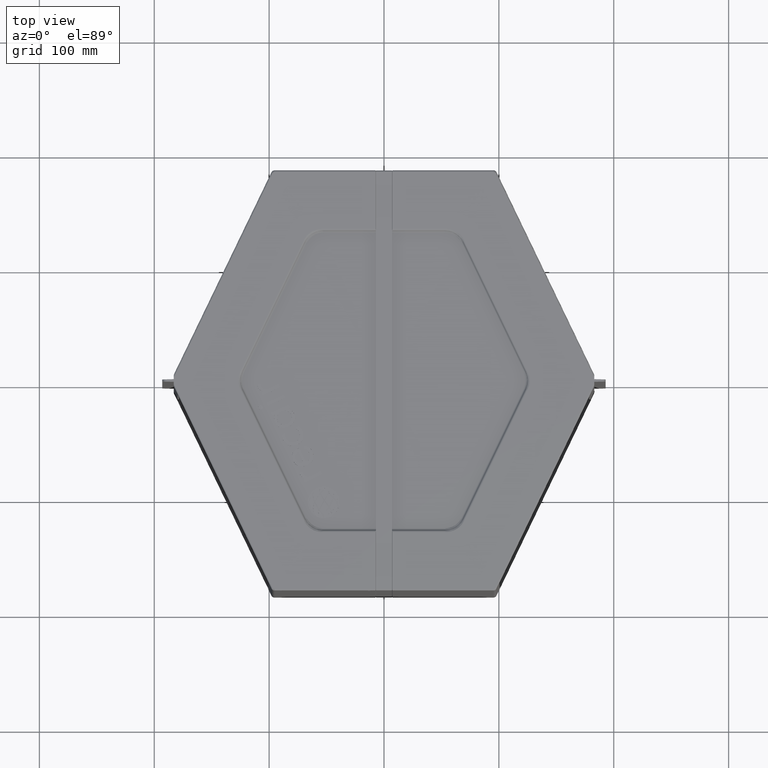
[diagram: clean part render]
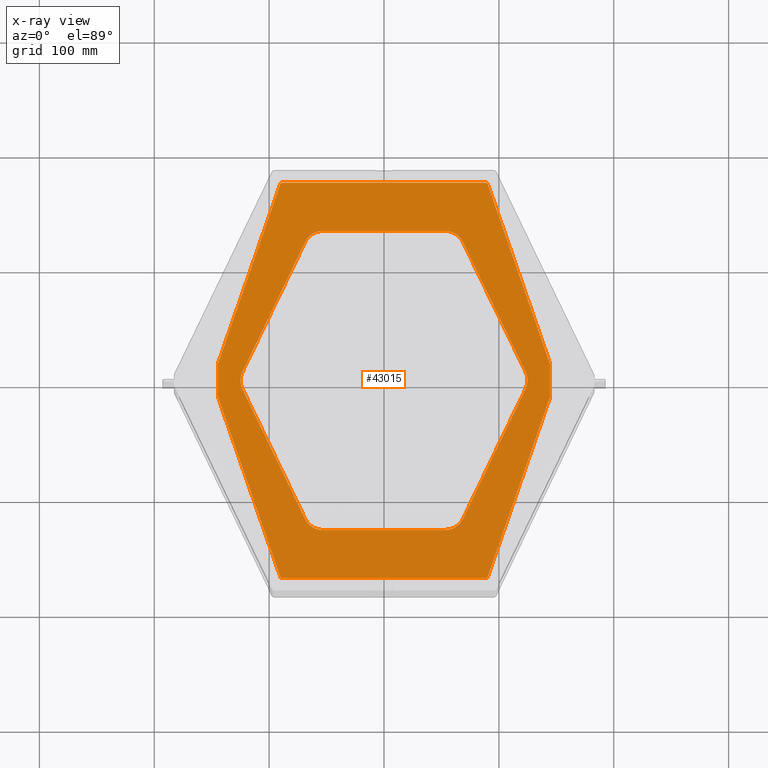
[diagram: x-ray — body ghosted, one internal face saturated and labeled with its STEP entity id]
A machine part, top view, then the same camera in x-ray: the body is ghosted and one INTERNAL B-rep face — a face not visible from any outside direction — is saturated and labeled: STEP entity #43015.
In plain terms, the highlighted planar face has unit normal (0, 0, 1).
Its self-contained STEP definition (entity closure, byte-faithful):
#1691=B_SPLINE_CURVE_WITH_KNOTS('',3,(#77413,#77414,#77415,#77416,#77417,
#77418,#77419,#77420),.UNSPECIFIED.,.F.,.F.,(4,2,2,4),(-1.98146014269304,
-1.3412873107452,-0.710856490114893,0.),.UNSPECIFIED.);
#1692=B_SPLINE_CURVE_WITH_KNOTS('',3,(#77449,#77450,#77451,#77452,#77453,
#77454,#77455,#77456),.UNSPECIFIED.,.F.,.F.,(4,2,2,4),(-1.98146014269311,
-1.34128731074525,-0.710856490114917,0.),.UNSPECIFIED.);
#1705=B_SPLINE_CURVE_WITH_KNOTS('',3,(#78128,#78129,#78130,#78131,#78132,
#78133,#78134,#78135),.UNSPECIFIED.,.F.,.F.,(4,2,2,4),(-1.58387703034784,
-1.14024298625562,-0.701200302790074,0.),.UNSPECIFIED.);
#1706=B_SPLINE_CURVE_WITH_KNOTS('',3,(#78158,#78159,#78160,#78161,#78162,
#78163,#78164,#78165),.UNSPECIFIED.,.F.,.F.,(4,2,2,4),(-1.58387703034787,
-1.1402429862556,-0.701200302790053,0.),.UNSPECIFIED.);
#1707=B_SPLINE_CURVE_WITH_KNOTS('',3,(#78192,#78193,#78194,#78195,#78196,
#78197,#78198,#78199),.UNSPECIFIED.,.F.,.F.,(4,2,2,4),(-1.98146014269321,
-1.34128731074529,-0.71085649011494,0.),.UNSPECIFIED.);
#1708=B_SPLINE_CURVE_WITH_KNOTS('',3,(#78226,#78227,#78228,#78229,#78230,
#78231,#78232,#78233),.UNSPECIFIED.,.F.,.F.,(4,2,2,4),(-1.98146014269319,
-1.34128731074528,-0.710856490114933,0.),.UNSPECIFIED.);
#1766=FACE_BOUND('',#6807,.T.);
#2489=PLANE('',#45621);
#4496=FACE_OUTER_BOUND('',#6806,.T.);
#6806=EDGE_LOOP('',(#34864,#34865,#34866,#34867,#34868,#34869,#34870,#34871,
#34872,#34873,#34874,#34875,#34876,#34877,#34878,#34879));
#6807=EDGE_LOOP('',(#34880,#34881,#34882,#34883,#34884,#34885,#34886,#34887,
#34888,#34889,#34890,#34891));
#10218=LINE('',#77425,#14386);
#10220=LINE('',#77460,#14388);
#10251=LINE('',#78024,#14419);
#10256=LINE('',#78038,#14424);
#10259=LINE('',#78046,#14427);
#10264=LINE('',#78057,#14432);
#10271=LINE('',#78078,#14439);
#10272=LINE('',#78169,#14440);
#10273=LINE('',#78203,#14441);
#10274=LINE('',#78236,#14442);
#10276=LINE('',#78243,#14444);
#10279=LINE('',#78251,#14447);
#10282=LINE('',#78259,#14450);
#10285=LINE('',#78266,#14453);
#14386=VECTOR('',#52615,10.);
#14388=VECTOR('',#52623,10.);
#14419=VECTOR('',#52760,10.);
#14424=VECTOR('',#52775,10.);
#14427=VECTOR('',#52784,10.);
#14432=VECTOR('',#52799,10.);
#14439=VECTOR('',#52818,10.);
#14440=VECTOR('',#52831,10.);
#14441=VECTOR('',#52838,10.);
#14442=VECTOR('',#52845,10.);
#14444=VECTOR('',#52853,10.);
#14447=VECTOR('',#52862,10.);
#14450=VECTOR('',#52871,10.);
#14453=VECTOR('',#52880,10.);
#16485=CIRCLE('',#45576,1.68181818181791);
#16486=CIRCLE('',#45579,1.68181818181813);
#16487=CIRCLE('',#45581,1.68181818181759);
#16488=CIRCLE('',#45584,1.68181818181822);
#16500=CIRCLE('',#45610,1.68181818181824);
#16501=CIRCLE('',#45613,1.68181818181778);
#16502=CIRCLE('',#45616,1.68181818181825);
#16503=CIRCLE('',#45619,1.68181818181752);
#19436=VERTEX_POINT('',#77411);
#19437=VERTEX_POINT('',#77412);
#19438=VERTEX_POINT('',#77424);
#19439=VERTEX_POINT('',#77448);
#19440=VERTEX_POINT('',#77459);
#19489=VERTEX_POINT('',#78017);
#19490=VERTEX_POINT('',#78018);
#19491=VERTEX_POINT('',#78023);
#19492=VERTEX_POINT('',#78027);
#19493=VERTEX_POINT('',#78031);
#19494=VERTEX_POINT('',#78032);
#19495=VERTEX_POINT('',#78037);
#19496=VERTEX_POINT('',#78041);
#19497=VERTEX_POINT('',#78045);
#19498=VERTEX_POINT('',#78056);
#19507=VERTEX_POINT('',#78127);
#19508=VERTEX_POINT('',#78157);
#19509=VERTEX_POINT('',#78168);
#19510=VERTEX_POINT('',#78191);
#19511=VERTEX_POINT('',#78202);
#19512=VERTEX_POINT('',#78225);
#19513=VERTEX_POINT('',#78238);
#19514=VERTEX_POINT('',#78242);
#19515=VERTEX_POINT('',#78246);
#19516=VERTEX_POINT('',#78250);
#19517=VERTEX_POINT('',#78254);
#19518=VERTEX_POINT('',#78258);
#19519=VERTEX_POINT('',#78262);
#24724=EDGE_CURVE('',#19436,#19437,#1691,.T.);
#24727=EDGE_CURVE('',#19437,#19438,#10218,.T.);
#24730=EDGE_CURVE('',#19438,#19439,#1692,.T.);
#24732=EDGE_CURVE('',#19439,#19440,#10220,.T.);
#24808=EDGE_CURVE('',#19489,#19490,#16485,.T.);
#24811=EDGE_CURVE('',#19490,#19491,#10251,.T.);
#24813=EDGE_CURVE('',#19491,#19492,#16486,.T.);
#24815=EDGE_CURVE('',#19493,#19494,#16487,.T.);
#24818=EDGE_CURVE('',#19494,#19495,#10256,.T.);
#24820=EDGE_CURVE('',#19495,#19496,#16488,.T.);
#24822=EDGE_CURVE('',#19497,#19436,#10259,.T.);
#24828=EDGE_CURVE('',#19498,#19493,#10264,.T.);
#24839=EDGE_CURVE('',#19496,#19489,#10271,.T.);
#24842=EDGE_CURVE('',#19440,#19507,#1705,.T.);
#24844=EDGE_CURVE('',#19508,#19497,#1706,.T.);
#24846=EDGE_CURVE('',#19509,#19508,#10272,.T.);
#24848=EDGE_CURVE('',#19510,#19509,#1707,.T.);
#24850=EDGE_CURVE('',#19511,#19510,#10273,.T.);
#24852=EDGE_CURVE('',#19512,#19511,#1708,.T.);
#24854=EDGE_CURVE('',#19507,#19512,#10274,.T.);
#24855=EDGE_CURVE('',#19513,#19498,#16500,.T.);
#24857=EDGE_CURVE('',#19514,#19513,#10276,.T.);
#24859=EDGE_CURVE('',#19515,#19514,#16501,.T.);
#24861=EDGE_CURVE('',#19516,#19515,#10279,.T.);
#24863=EDGE_CURVE('',#19517,#19516,#16502,.T.);
#24865=EDGE_CURVE('',#19518,#19517,#10282,.T.);
#24867=EDGE_CURVE('',#19519,#19518,#16503,.T.);
#24869=EDGE_CURVE('',#19492,#19519,#10285,.T.);
#34864=ORIENTED_EDGE('',*,*,#24828,.F.);
#34865=ORIENTED_EDGE('',*,*,#24855,.F.);
#34866=ORIENTED_EDGE('',*,*,#24857,.F.);
#34867=ORIENTED_EDGE('',*,*,#24859,.F.);
#34868=ORIENTED_EDGE('',*,*,#24861,.F.);
#34869=ORIENTED_EDGE('',*,*,#24863,.F.);
#34870=ORIENTED_EDGE('',*,*,#24865,.F.);
#34871=ORIENTED_EDGE('',*,*,#24867,.F.);
#34872=ORIENTED_EDGE('',*,*,#24869,.F.);
#34873=ORIENTED_EDGE('',*,*,#24813,.F.);
#34874=ORIENTED_EDGE('',*,*,#24811,.F.);
#34875=ORIENTED_EDGE('',*,*,#24808,.F.);
#34876=ORIENTED_EDGE('',*,*,#24839,.F.);
#34877=ORIENTED_EDGE('',*,*,#24820,.F.);
#34878=ORIENTED_EDGE('',*,*,#24818,.F.);
#34879=ORIENTED_EDGE('',*,*,#24815,.F.);
#34880=ORIENTED_EDGE('',*,*,#24822,.F.);
#34881=ORIENTED_EDGE('',*,*,#24844,.F.);
#34882=ORIENTED_EDGE('',*,*,#24846,.F.);
#34883=ORIENTED_EDGE('',*,*,#24848,.F.);
#34884=ORIENTED_EDGE('',*,*,#24850,.F.);
#34885=ORIENTED_EDGE('',*,*,#24852,.F.);
#34886=ORIENTED_EDGE('',*,*,#24854,.F.);
#34887=ORIENTED_EDGE('',*,*,#24842,.F.);
#34888=ORIENTED_EDGE('',*,*,#24732,.F.);
#34889=ORIENTED_EDGE('',*,*,#24730,.F.);
#34890=ORIENTED_EDGE('',*,*,#24727,.F.);
#34891=ORIENTED_EDGE('',*,*,#24724,.F.);
#43015=ADVANCED_FACE('',(#4496,#1766),#2489,.T.);
#45576=AXIS2_PLACEMENT_3D('',#78019,#52754,#52755);
#45579=AXIS2_PLACEMENT_3D('',#78028,#52764,#52765);
#45581=AXIS2_PLACEMENT_3D('',#78033,#52769,#52770);
#45584=AXIS2_PLACEMENT_3D('',#78042,#52779,#52780);
#45610=AXIS2_PLACEMENT_3D('',#78239,#52848,#52849);
#45613=AXIS2_PLACEMENT_3D('',#78247,#52857,#52858);
#45616=AXIS2_PLACEMENT_3D('',#78255,#52866,#52867);
#45619=AXIS2_PLACEMENT_3D('',#78263,#52875,#52876);
#45621=AXIS2_PLACEMENT_3D('',#78267,#52881,#52882);
#52615=DIRECTION('',(-1.,0.,0.));
#52623=DIRECTION('',(-0.434445257404413,-0.90069823932259,-1.10303721578407E-16));
#52754=DIRECTION('center_axis',(0.,0.,-1.));
#52755=DIRECTION('ref_axis',(-1.,1.67581241891141E-16,2.05227831479124E-32));
#52760=DIRECTION('',(0.327424670971755,0.944877285597997,0.));
#52764=DIRECTION('center_axis',(0.,0.,-1.));
#52765=DIRECTION('ref_axis',(-0.944877285597997,0.327424670971755,4.00979575267435E-17));
#52769=DIRECTION('center_axis',(0.,0.,-1.));
#52770=DIRECTION('ref_axis',(-1.67581241891141E-16,-1.,-1.22464679914735E-16));
#52775=DIRECTION('',(-0.327424670971755,0.944877285597997,0.));
#52779=DIRECTION('center_axis',(0.,0.,-1.));
#52780=DIRECTION('ref_axis',(-0.944877285597996,-0.327424670971757,-4.00979575267438E-17));
#52784=DIRECTION('',(-0.434445257404413,0.90069823932259,1.10303721578407E-16));
#52799=DIRECTION('',(-1.,3.67831560702327E-16,0.));
#52818=DIRECTION('',(-1.12876157107285E-15,1.,0.));
#52831=DIRECTION('',(0.434445257404412,0.90069823932259,1.10303721578407E-16));
#52838=DIRECTION('',(1.,2.75439061325119E-16,3.37315564811959E-32));
#52845=DIRECTION('',(0.434445257404412,-0.90069823932259,-1.10303721578407E-16));
#52848=DIRECTION('center_axis',(0.,0.,-1.));
#52849=DIRECTION('ref_axis',(0.944877285597995,-0.32742467097176,-4.00979575267441E-17));
#52853=DIRECTION('',(-0.327424670971755,-0.944877285597996,0.));
#52857=DIRECTION('center_axis',(0.,0.,-1.));
#52858=DIRECTION('ref_axis',(1.,-1.67581241891141E-16,-2.05227831479124E-32));
#52862=DIRECTION('',(-1.46392405485513E-15,-1.,0.));
#52866=DIRECTION('center_axis',(0.,0.,-1.));
#52867=DIRECTION('ref_axis',(0.944877285597996,0.327424670971757,4.00979575267438E-17));
#52871=DIRECTION('',(0.327424670971755,-0.944877285597997,0.));
#52875=DIRECTION('center_axis',(0.,0.,-1.));
#52876=DIRECTION('ref_axis',(1.67581241891141E-16,1.,1.22464679914735E-16));
#52880=DIRECTION('',(1.,-1.73935027827507E-17,0.));
#52881=DIRECTION('center_axis',(0.,0.,1.));
#52882=DIRECTION('ref_axis',(1.,0.,0.));
#77411=CARTESIAN_POINT('',(68.7904762322757,120.314480288701,346.));
#77412=CARTESIAN_POINT('',(52.9998709686779,130.22951210002,346.));
#77413=CARTESIAN_POINT('Ctrl Pts',(68.7904762322757,120.314480288701,346.));
#77414=CARTESIAN_POINT('Ctrl Pts',(67.8636409049183,122.236008797219,346.));
#77415=CARTESIAN_POINT('Ctrl Pts',(66.6263715128331,123.98069571258,346.000000000021));
#77416=CARTESIAN_POINT('Ctrl Pts',(63.5801325783517,126.915466374005,346.000000000021));
#77417=CARTESIAN_POINT('Ctrl Pts',(61.8249133910185,128.069747860098,345.999999999985));
#77418=CARTESIAN_POINT('Ctrl Pts',(57.7045476576324,129.789801274203,345.999999999985));
#77419=CARTESIAN_POINT('Ctrl Pts',(55.3693926023942,130.22951210002,346.));
#77420=CARTESIAN_POINT('Ctrl Pts',(52.9998709686779,130.22951210002,346.));
#77424=CARTESIAN_POINT('',(-52.9998709686779,130.22951210002,346.));
#77425=CARTESIAN_POINT('',(-32.2459136851235,130.22951210002,346.));
#77448=CARTESIAN_POINT('',(-68.7904762322756,120.314480288701,346.));
#77449=CARTESIAN_POINT('Ctrl Pts',(-52.9998709686779,130.22951210002,346.));
#77450=CARTESIAN_POINT('Ctrl Pts',(-55.1332475254732,130.22951210002,346.));
#77451=CARTESIAN_POINT('Ctrl Pts',(-57.242209777831,129.873076693035,346.000000000021));
#77452=CARTESIAN_POINT('Ctrl Pts',(-61.2089766033987,128.404331843618,346.000000000021));
#77453=CARTESIAN_POINT('Ctrl Pts',(-63.0111825572478,127.324881129305,345.999999999985));
#77454=CARTESIAN_POINT('Ctrl Pts',(-66.3505049905139,124.360944016119,345.999999999985));
#77455=CARTESIAN_POINT('Ctrl Pts',(-67.7610487961905,122.448704252226,346.));
#77456=CARTESIAN_POINT('Ctrl Pts',(-68.7904762322757,120.314480288701,346.));
#77459=CARTESIAN_POINT('',(-123.149536732667,7.61648382201197,346.));
#77460=CARTESIAN_POINT('',(-114.935536713592,24.645868373652,346.));
#78017=CARTESIAN_POINT('',(-144.681818181818,13.8215335158806,346.));
#78018=CARTESIAN_POINT('',(-144.589111798505,14.3722022806967,346.));
#78019=CARTESIAN_POINT('Origin',(-143.,13.8215335158806,346.));
#78023=CARTESIAN_POINT('',(-90.2959288435839,171.050668764816,346.));
#78024=CARTESIAN_POINT('',(-139.061843669433,30.3227111139831,346.));
#78027=CARTESIAN_POINT('',(-88.7068170450782,172.181818181818,346.));
#78028=CARTESIAN_POINT('Origin',(-88.7068170450782,170.5,346.));
#78031=CARTESIAN_POINT('',(-88.7068170450782,-172.181818181818,346.));
#78032=CARTESIAN_POINT('',(-90.2959288435834,-171.050668764816,346.));
#78033=CARTESIAN_POINT('Origin',(-88.7068170450783,-170.5,346.));
#78037=CARTESIAN_POINT('',(-144.589111798506,-14.3722022806968,346.));
#78038=CARTESIAN_POINT('',(-111.915252191972,-108.661944356043,346.));
#78041=CARTESIAN_POINT('',(-144.681818181818,-13.8215335158806,346.));
#78042=CARTESIAN_POINT('Origin',(-143.,-13.8215335158806,346.));
#78045=CARTESIAN_POINT('',(123.149536732667,7.61648382201197,346.));
#78046=CARTESIAN_POINT('',(83.3420871900417,90.1458683736521,346.));
#78056=CARTESIAN_POINT('',(88.7068170450782,-172.181818181818,346.));
#78057=CARTESIAN_POINT('',(44.353408522539,-172.181818181818,346.));
#78078=CARTESIAN_POINT('',(-144.681818181818,-6.91076675794045,346.));
#78127=CARTESIAN_POINT('',(-123.149536732667,-7.61648382201199,346.));
#78128=CARTESIAN_POINT('Ctrl Pts',(-123.149536732667,7.616483822012,346.));
#78129=CARTESIAN_POINT('Ctrl Pts',(-123.791648782913,6.28524776120135,346.));
#78130=CARTESIAN_POINT('Ctrl Pts',(-124.270329236039,4.88489281452339,346.));
#78131=CARTESIAN_POINT('Ctrl Pts',(-124.858956815086,2.00454631400602,346.));
#78132=CARTESIAN_POINT('Ctrl Pts',(-124.968558812377,0.54529650676482,345.999999999997));
#78133=CARTESIAN_POINT('Ctrl Pts',(-124.765164153616,-3.24671969951572,
345.999999999997));
#78134=CARTESIAN_POINT('Ctrl Pts',(-124.164980552792,-5.51125089489375,
346.));
#78135=CARTESIAN_POINT('Ctrl Pts',(-123.149536732667,-7.61648382201203,
346.));
#78157=CARTESIAN_POINT('',(123.149536732667,-7.61648382201198,346.));
#78158=CARTESIAN_POINT('Ctrl Pts',(123.149536732667,-7.61648382201203,346.));
#78159=CARTESIAN_POINT('Ctrl Pts',(123.791648782913,-6.28524776120137,346.));
#78160=CARTESIAN_POINT('Ctrl Pts',(124.270329236039,-4.88489281452342,346.));
#78161=CARTESIAN_POINT('Ctrl Pts',(124.858956815086,-2.00454631400618,346.));
#78162=CARTESIAN_POINT('Ctrl Pts',(124.968558812377,-0.545296506764918,
345.999999999997));
#78163=CARTESIAN_POINT('Ctrl Pts',(124.765164153616,3.24671969951573,345.999999999997));
#78164=CARTESIAN_POINT('Ctrl Pts',(124.164980552792,5.51125089489378,346.));
#78165=CARTESIAN_POINT('Ctrl Pts',(123.149536732667,7.616483822012,346.));
#78168=CARTESIAN_POINT('',(68.7904762322758,-120.314480288701,346.));
#78169=CARTESIAN_POINT('',(114.935536713592,-24.6458683736521,346.));
#78191=CARTESIAN_POINT('',(52.999870968678,-130.22951210002,346.));
#78192=CARTESIAN_POINT('Ctrl Pts',(52.9998709686779,-130.22951210002,346.));
#78193=CARTESIAN_POINT('Ctrl Pts',(55.1332475254732,-130.22951210002,346.));
#78194=CARTESIAN_POINT('Ctrl Pts',(57.242209777831,-129.873076693035,346.000000000021));
#78195=CARTESIAN_POINT('Ctrl Pts',(61.2089766033987,-128.404331843618,346.000000000021));
#78196=CARTESIAN_POINT('Ctrl Pts',(63.0111825572478,-127.324881129305,345.999999999985));
#78197=CARTESIAN_POINT('Ctrl Pts',(66.350504990514,-124.360944016119,345.999999999985));
#78198=CARTESIAN_POINT('Ctrl Pts',(67.7610487961905,-122.448704252226,346.));
#78199=CARTESIAN_POINT('Ctrl Pts',(68.7904762322758,-120.314480288701,346.));
#78202=CARTESIAN_POINT('',(-52.999870968678,-130.22951210002,346.));
#78203=CARTESIAN_POINT('',(32.2459136851236,-130.22951210002,346.));
#78225=CARTESIAN_POINT('',(-68.7904762322758,-120.314480288701,346.));
#78226=CARTESIAN_POINT('Ctrl Pts',(-68.7904762322758,-120.314480288701,
346.));
#78227=CARTESIAN_POINT('Ctrl Pts',(-67.8636409049184,-122.236008797219,
346.));
#78228=CARTESIAN_POINT('Ctrl Pts',(-66.6263715128332,-123.98069571258,346.000000000021));
#78229=CARTESIAN_POINT('Ctrl Pts',(-63.5801325783517,-126.915466374005,
346.000000000021));
#78230=CARTESIAN_POINT('Ctrl Pts',(-61.8249133910185,-128.069747860098,
345.999999999985));
#78231=CARTESIAN_POINT('Ctrl Pts',(-57.7045476576325,-129.789801274203,
345.999999999985));
#78232=CARTESIAN_POINT('Ctrl Pts',(-55.3693926023944,-130.22951210002,346.));
#78233=CARTESIAN_POINT('Ctrl Pts',(-52.999870968678,-130.22951210002,346.));
#78236=CARTESIAN_POINT('',(-83.3420871900419,-90.1458683736522,346.));
#78238=CARTESIAN_POINT('',(90.2959288435841,-171.050668764816,346.));
#78239=CARTESIAN_POINT('Origin',(88.7068170450782,-170.5,346.));
#78242=CARTESIAN_POINT('',(144.589111798505,-14.3722022806969,346.));
#78243=CARTESIAN_POINT('',(139.061843669433,-30.3227111139835,346.));
#78246=CARTESIAN_POINT('',(144.681818181818,-13.8215335158808,346.));
#78247=CARTESIAN_POINT('Origin',(143.,-13.8215335158808,346.));
#78250=CARTESIAN_POINT('',(144.681818181818,13.8215335158806,346.));
#78251=CARTESIAN_POINT('',(144.681818181818,6.91076675794009,346.));
#78254=CARTESIAN_POINT('',(144.589111798506,14.3722022806967,346.));
#78255=CARTESIAN_POINT('Origin',(143.,13.8215335158805,346.));
#78258=CARTESIAN_POINT('',(90.2959288435834,171.050668764816,346.));
#78259=CARTESIAN_POINT('',(111.915252191972,108.661944356043,346.));
#78262=CARTESIAN_POINT('',(88.7068170450782,172.181818181818,346.));
#78263=CARTESIAN_POINT('Origin',(88.7068170450782,170.5,346.));
#78266=CARTESIAN_POINT('',(-44.3534085225392,172.181818181818,346.));
#78267=CARTESIAN_POINT('Origin',(-1.33226762955019E-13,-1.57651669496772E-13,
346.));